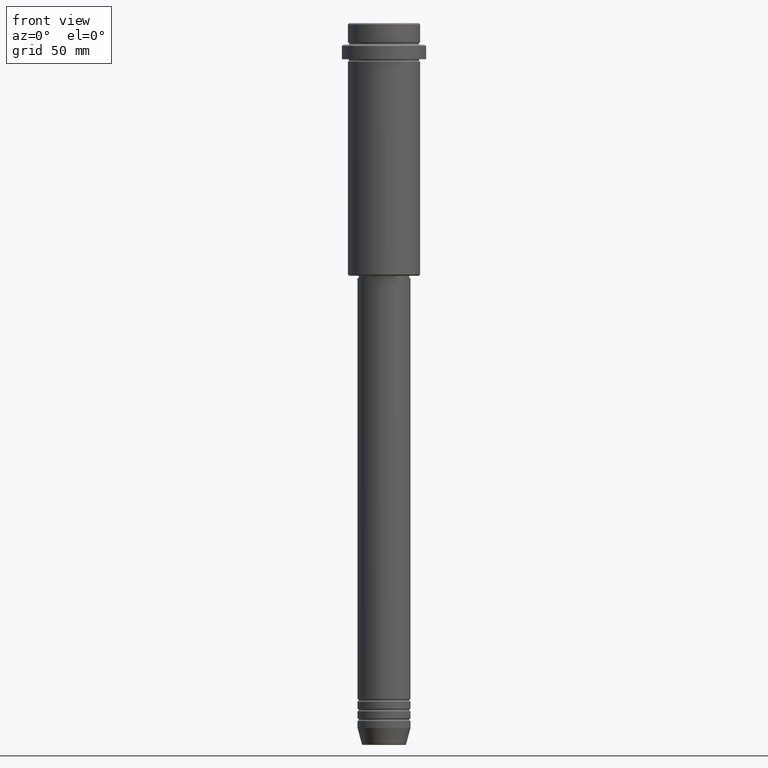
[diagram: clean part render]
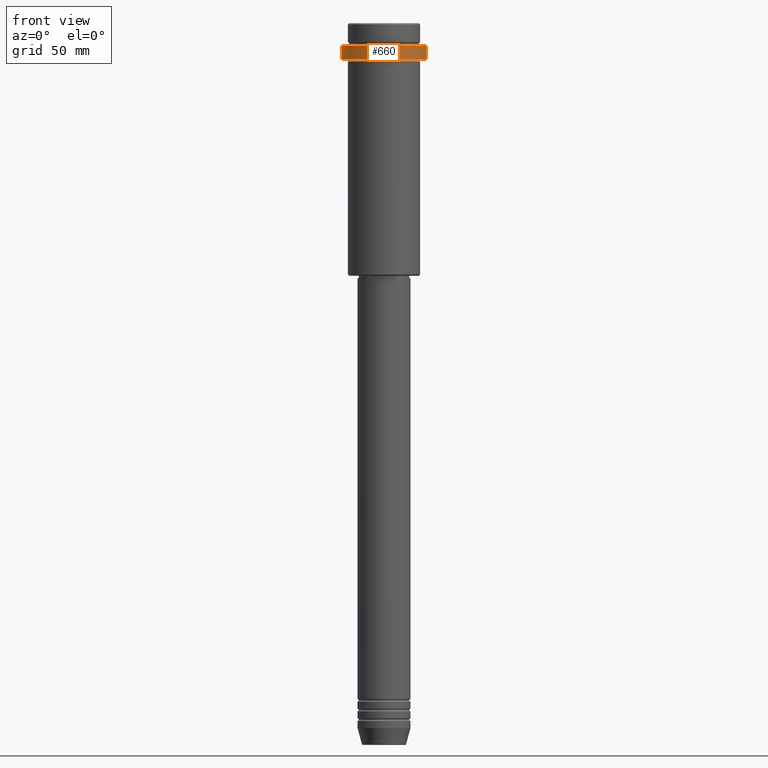
[diagram: same view with one face highlighted and labeled with its STEP entity id]
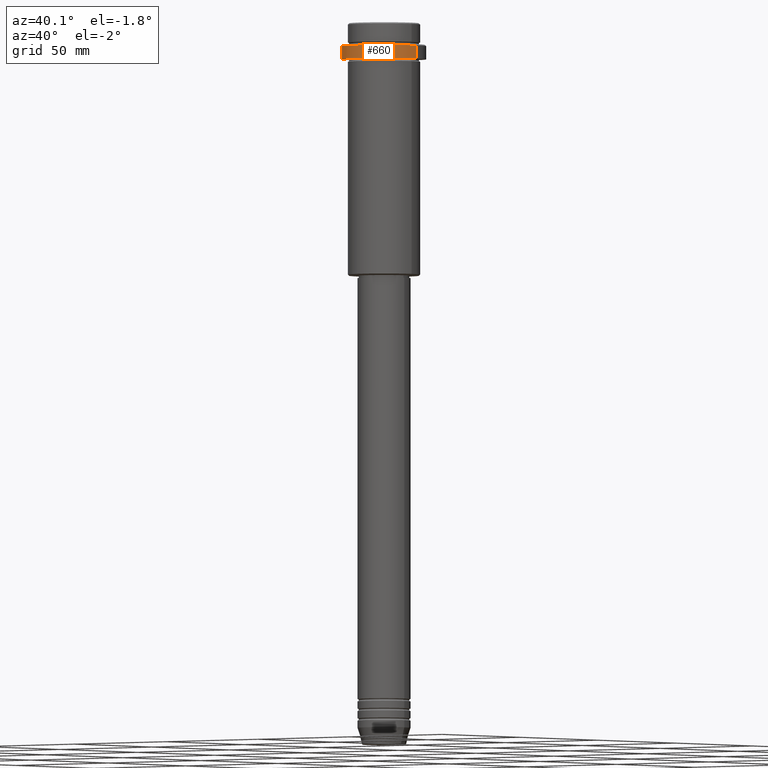
[diagram: same view with one face highlighted and labeled with its STEP entity id]
A machine part, front view. The second image highlights one B-rep face of the part: STEP entity #660.
A second angle (auxiliary view) of the same face is appended — the face is thin or edge-on in the first view.
In plain terms, the highlighted cylindrical surface (partial cylindrical patch) has radius 17.5 mm, axis along (-0, -0, 1).
Its self-contained STEP definition (entity closure, byte-faithful):
#15 = EDGE_CURVE ( 'NONE', #430, #408, #1035, .T. ) ;
#28 = AXIS2_PLACEMENT_3D ( 'NONE', #667, #893, #463 ) ;
#52 = DIRECTION ( 'NONE',  ( -0.000000000000000000, -0.000000000000000000, 1.000000000000000000 ) ) ;
#54 = AXIS2_PLACEMENT_3D ( 'NONE', #204, #1110, #159 ) ;
#116 = DIRECTION ( 'NONE',  ( -0.000000000000000000, -0.000000000000000000, 1.000000000000000000 ) ) ;
#159 = DIRECTION ( 'NONE',  ( 1.000000000000000000, 0.000000000000000000, 0.000000000000000000 ) ) ;
#204 = CARTESIAN_POINT ( 'NONE',  ( 0.000000000000000000, 0.000000000000000000, -15.00000000000000178 ) ) ;
#205 = EDGE_CURVE ( 'NONE', #998, #914, #245, .T. ) ;
#224 = DIRECTION ( 'NONE',  ( 1.000000000000000000, 0.000000000000000000, 0.000000000000000000 ) ) ;
#245 = CIRCLE ( 'NONE', #28, 17.50000000000000000 ) ;
#404 = CARTESIAN_POINT ( 'NONE',  ( -17.50000000000000000, 2.143131898507868248E-15, -15.00000000000000178 ) ) ;
#408 = VERTEX_POINT ( 'NONE', #498 ) ;
#430 = VERTEX_POINT ( 'NONE', #404 ) ;
#454 = FACE_OUTER_BOUND ( 'NONE', #723, .T. ) ;
#463 = DIRECTION ( 'NONE',  ( 1.000000000000000000, 0.000000000000000000, 0.000000000000000000 ) ) ;
#494 = AXIS2_PLACEMENT_3D ( 'NONE', #570, #116, #224 ) ;
#497 = LINE ( 'NONE', #1027, #901 ) ;
#498 = CARTESIAN_POINT ( 'NONE',  ( 17.50000000000000000, 0.000000000000000000, -15.00000000000000178 ) ) ;
#570 = CARTESIAN_POINT ( 'NONE',  ( 0.000000000000000000, 0.000000000000000000, 0.000000000000000000 ) ) ;
#632 = CARTESIAN_POINT ( 'NONE',  ( 17.50000000000000000, 0.000000000000000000, 0.000000000000000000 ) ) ;
#660 = ADVANCED_FACE ( 'NONE', ( #454 ), #1082, .T. ) ;
#667 = CARTESIAN_POINT ( 'NONE',  ( 0.000000000000000000, 0.000000000000000000, -9.500000000000028422 ) ) ;
#723 = EDGE_LOOP ( 'NONE', ( #883, #1095, #896, #1323 ) ) ;
#740 = VECTOR ( 'NONE', #1051, 1000.000000000000000 ) ;
#782 = CARTESIAN_POINT ( 'NONE',  ( 17.50000000000000000, 0.000000000000000000, -9.500000000000028422 ) ) ;
#801 = EDGE_CURVE ( 'NONE', #430, #914, #497, .T. ) ;
#883 = ORIENTED_EDGE ( 'NONE', *, *, #801, .F. ) ;
#893 = DIRECTION ( 'NONE',  ( 0.000000000000000000, 0.000000000000000000, -1.000000000000000000 ) ) ;
#896 = ORIENTED_EDGE ( 'NONE', *, *, #945, .T. ) ;
#901 = VECTOR ( 'NONE', #52, 1000.000000000000000 ) ;
#914 = VERTEX_POINT ( 'NONE', #1056 ) ;
#945 = EDGE_CURVE ( 'NONE', #408, #998, #954, .T. ) ;
#954 = LINE ( 'NONE', #632, #740 ) ;
#998 = VERTEX_POINT ( 'NONE', #782 ) ;
#1027 = CARTESIAN_POINT ( 'NONE',  ( -17.50000000000000000, 2.143131898507868248E-15, 0.000000000000000000 ) ) ;
#1035 = CIRCLE ( 'NONE', #54, 17.50000000000000000 ) ;
#1051 = DIRECTION ( 'NONE',  ( -0.000000000000000000, -0.000000000000000000, 1.000000000000000000 ) ) ;
#1056 = CARTESIAN_POINT ( 'NONE',  ( -17.50000000000000000, 2.143131898507868248E-15, -9.500000000000028422 ) ) ;
#1082 = CYLINDRICAL_SURFACE ( 'NONE', #494, 17.50000000000000000 ) ;
#1095 = ORIENTED_EDGE ( 'NONE', *, *, #15, .T. ) ;
#1110 = DIRECTION ( 'NONE',  ( -0.000000000000000000, -0.000000000000000000, 1.000000000000000000 ) ) ;
#1323 = ORIENTED_EDGE ( 'NONE', *, *, #205, .T. ) ;